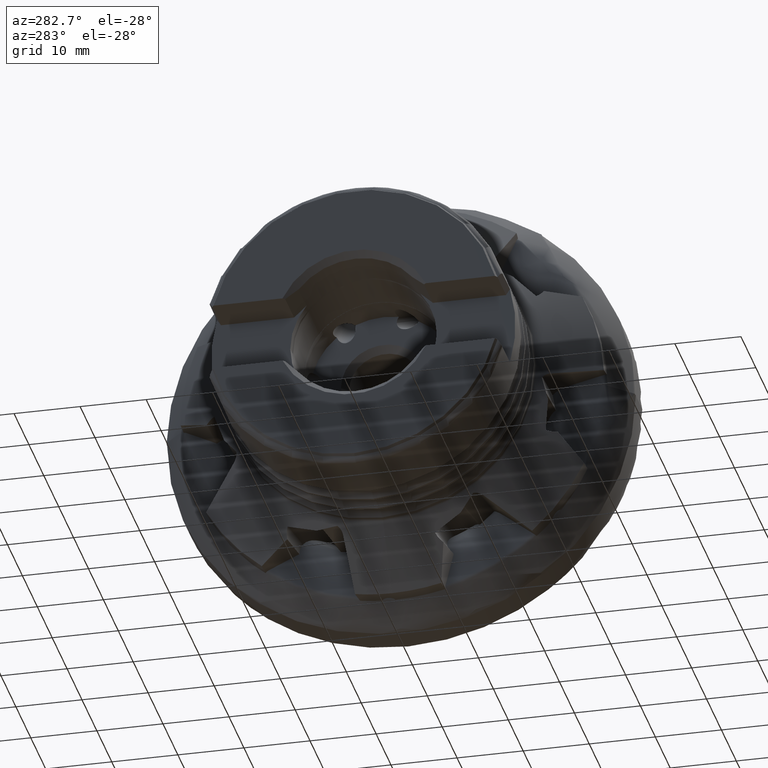
[diagram: clean part render]
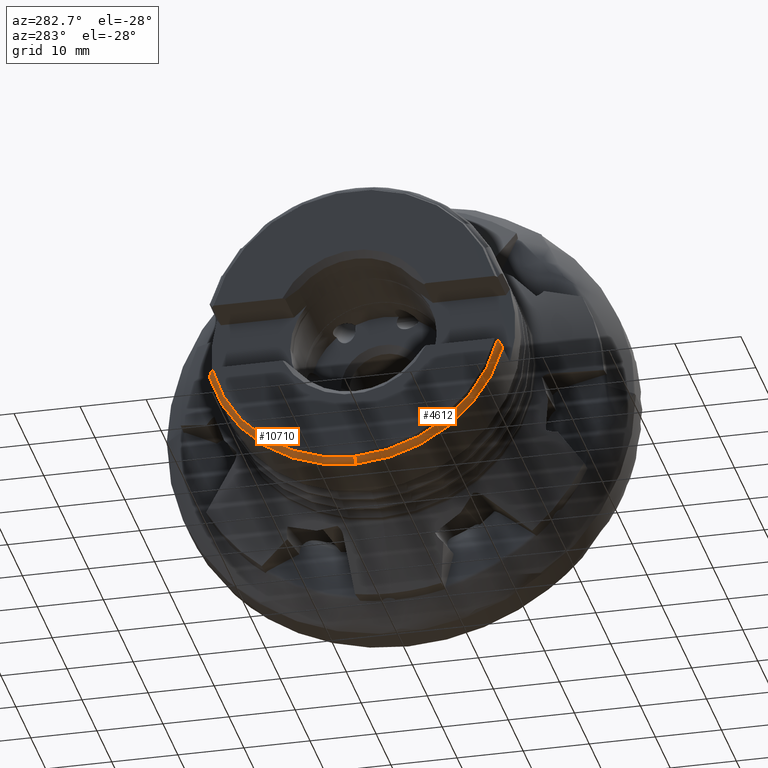
[diagram: same view with one multi-face feature highlighted, each face labeled with its STEP entity id]
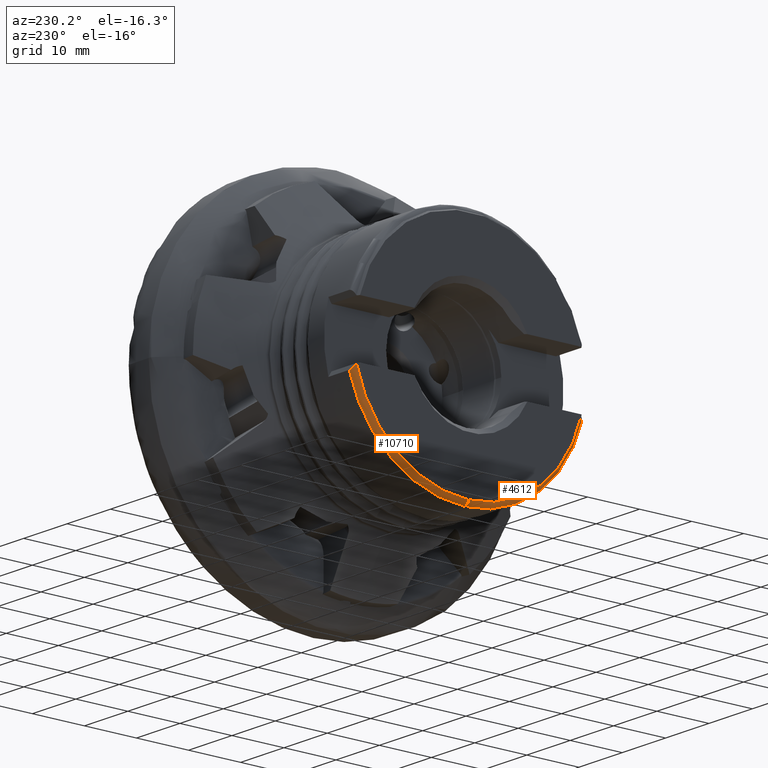
[diagram: same view with one multi-face feature highlighted, each face labeled with its STEP entity id]
A machine part, auxiliary view. The highlighted faces form ONE feature: a constant-radius fillet chain: 2 tangent blend faces with common blend radius 1 mm. The faces share edges in the B-rep.
A second angle (auxiliary view) of the same feature is appended — it is thin or edge-on in the first view.
Their STEP definitions:
[1] entity #10710 (Torus):
#3 = CARTESIAN_POINT ( 'NONE',  ( -37.78477570909506500, 22.16277957983924600, -6.149081337522224200 ) ) ;
#42 = AXIS2_PLACEMENT_3D ( 'NONE', #1176, #8169, #2180 ) ;
#533 = ORIENTED_EDGE ( 'NONE', *, *, #9667, .F. ) ;
#1176 = CARTESIAN_POINT ( 'NONE',  ( -38.62876197310684000, 0.0000000000000000000, 0.0000000000000000000 ) ) ;
#1490 = ORIENTED_EDGE ( 'NONE', *, *, #6953, .T. ) ;
#1525 = CIRCLE ( 'NONE', #8928, 22.99999999999999600 ) ;
#1550 = CARTESIAN_POINT ( 'NONE',  ( -37.65000000000000600, 0.0000000000000000000, 0.0000000000000000000 ) ) ;
#1961 = VERTEX_POINT ( 'NONE', #10274 ) ;
#1982 = CARTESIAN_POINT ( 'NONE',  ( -38.60899593719592800, 21.65295164940627300, -5.331065338834224400 ) ) ;
#2059 = CARTESIAN_POINT ( 'NONE',  ( -37.65000000000000600, 22.16277957983918900, -6.149081337522125600 ) ) ;
#2180 = DIRECTION ( 'NONE',  ( 0.0000000000000000000, 0.0000000000000000000, -1.000000000000000000 ) ) ;
#2532 = DIRECTION ( 'NONE',  ( 0.0000000000000000000, 0.0000000000000000000, -1.000000000000000000 ) ) ;
#3967 = CARTESIAN_POINT ( 'NONE',  ( -38.47807463665398600, 21.85142011108864000, -5.649506850567987300 ) ) ;
#4162 = TOROIDAL_SURFACE ( 'NONE', #4817, 21.99999999999999600, 0.9999999999999991100 ) ;
#4604 = CARTESIAN_POINT ( 'NONE',  ( -37.65000000000000600, 0.0000000000000000000, -21.99999999999999600 ) ) ;
#4817 = AXIS2_PLACEMENT_3D ( 'NONE', #10870, #8879, #5882 ) ;
#4974 = CARTESIAN_POINT ( 'NONE',  ( -38.24959921778114600, 22.02455183252134300, -5.927295707471275300 ) ) ;
#5599 = DIRECTION ( 'NONE',  ( 0.0000000000000000000, 0.0000000000000000000, -1.000000000000000000 ) ) ;
#5882 = DIRECTION ( 'NONE',  ( 0.0000000000000000000, 0.0000000000000000000, -1.000000000000000000 ) ) ;
#5972 = CARTESIAN_POINT ( 'NONE',  ( -37.91644841335190800, 22.14275851567247200, -6.116957654566550500 ) ) ;
#6084 = VERTEX_POINT ( 'NONE', #2059 ) ;
#6499 = FACE_OUTER_BOUND ( 'NONE', #7173, .T. ) ;
#6819 = VERTEX_POINT ( 'NONE', #10515 ) ;
#6953 = EDGE_CURVE ( 'NONE', #10590, #6819, #7525, .T. ) ;
#6997 = CARTESIAN_POINT ( 'NONE',  ( -37.65000000000000600, 22.16277957983918900, -6.149081337522125600 ) ) ;
#7173 = EDGE_LOOP ( 'NONE', ( #533, #1490, #9065, #10235 ) ) ;
#7525 = CIRCLE ( 'NONE', #42, 22.20499999999999500 ) ;
#7980 = EDGE_CURVE ( 'NONE', #6819, #6084, #9057, .T. ) ;
#8169 = DIRECTION ( 'NONE',  ( 1.000000000000000000, -0.0000000000000000000, -0.0000000000000000000 ) ) ;
#8528 = DIRECTION ( 'NONE',  ( 1.000000000000000000, -0.0000000000000000000, -0.0000000000000000000 ) ) ;
#8879 = DIRECTION ( 'NONE',  ( 1.000000000000000000, -0.0000000000000000000, -0.0000000000000000000 ) ) ;
#8928 = AXIS2_PLACEMENT_3D ( 'NONE', #1550, #8528, #2532 ) ;
#8960 = CARTESIAN_POINT ( 'NONE',  ( -38.62876197310684000, 21.58299944909203900, -5.218827433484714000 ) ) ;
#9057 = B_SPLINE_CURVE_WITH_KNOTS ( 'NONE', 3,
 ( #8960, #1982, #9948, #3967, #10966, #4974, #11963, #5972, #3, #6997 ),
 .UNSPECIFIED., .F., .F.,
 ( 4, 2, 2, 2, 4 ),
 ( 0.0000000000000000000, 0.0003970312538260667200, 0.0007940625076521334400, 0.001191093761478200200, 0.001588125015304266900 ),
 .UNSPECIFIED. ) ;
#9065 = ORIENTED_EDGE ( 'NONE', *, *, #7980, .T. ) ;
#9667 = EDGE_CURVE ( 'NONE', #10590, #1961, #10754, .T. ) ;
#9837 = AXIS2_PLACEMENT_3D ( 'NONE', #4604, #11584, #5599 ) ;
#9913 = EDGE_CURVE ( 'NONE', #1961, #6084, #1525, .T. ) ;
#9948 = CARTESIAN_POINT ( 'NONE',  ( -38.57580167535191200, 21.72076875212226500, -5.439877492297911000 ) ) ;
#10235 = ORIENTED_EDGE ( 'NONE', *, *, #9913, .F. ) ;
#10274 = CARTESIAN_POINT ( 'NONE',  ( -37.65000000000000600, 0.0000000000000000000, -22.99999999999999300 ) ) ;
#10515 = CARTESIAN_POINT ( 'NONE',  ( -38.62876197310684000, 21.58299944909203900, -5.218827433484714000 ) ) ;
#10590 = VERTEX_POINT ( 'NONE', #11567 ) ;
#10710 = ADVANCED_FACE ( 'NONE', ( #6499 ), #4162, .T. ) ;
#10754 = CIRCLE ( 'NONE', #9837, 0.9999999999999974500 ) ;
#10870 = CARTESIAN_POINT ( 'NONE',  ( -37.65000000000000600, 0.0000000000000000000, 0.0000000000000000000 ) ) ;
#10966 = CARTESIAN_POINT ( 'NONE',  ( -38.41334595356296000, 21.91394617149252600, -5.749829556901220300 ) ) ;
#11567 = CARTESIAN_POINT ( 'NONE',  ( -38.62876197310684000, 0.0000000000000000000, -22.20499999999999500 ) ) ;
#11584 = DIRECTION ( 'NONE',  ( -0.0000000000000000000, -1.000000000000000000, -0.0000000000000000000 ) ) ;
#11963 = CARTESIAN_POINT ( 'NONE',  ( -38.14979191648345100, 22.07306216387124600, -6.005130256692966700 ) ) ;
[2] entity #4612 (Torus):
#1544 = FACE_OUTER_BOUND ( 'NONE', #4588, .T. ) ;
#1961 = VERTEX_POINT ( 'NONE', #10274 ) ;
#3567 = CARTESIAN_POINT ( 'NONE',  ( -38.62876197310684000, 0.0000000000000000000, 0.0000000000000000000 ) ) ;
#3580 = DIRECTION ( 'NONE',  ( 0.0000000000000000000, 0.0000000000000000000, -1.000000000000000000 ) ) ;
#3677 = CARTESIAN_POINT ( 'NONE',  ( -38.14805147086510600, -22.07368532447811700, -6.006130114322855800 ) ) ;
#4179 = CIRCLE ( 'NONE', #4889, 22.99999999999999600 ) ;
#4575 = DIRECTION ( 'NONE',  ( 0.0000000000000000000, 0.0000000000000000000, -1.000000000000000000 ) ) ;
#4585 = CARTESIAN_POINT ( 'NONE',  ( -37.65000000000000600, 0.0000000000000000000, 0.0000000000000000000 ) ) ;
#4588 = EDGE_LOOP ( 'NONE', ( #9598, #7319, #8546, #6321 ) ) ;
#4604 = CARTESIAN_POINT ( 'NONE',  ( -37.65000000000000600, 0.0000000000000000000, -21.99999999999999600 ) ) ;
#4612 = ADVANCED_FACE ( 'NONE', ( #1544 ), #9187, .T. ) ;
#4689 = CARTESIAN_POINT ( 'NONE',  ( -38.41265849732323500, -21.91453231878247700, -5.750770026875791500 ) ) ;
#4872 = DIRECTION ( 'NONE',  ( 1.000000000000000000, -0.0000000000000000000, -0.0000000000000000000 ) ) ;
#4889 = AXIS2_PLACEMENT_3D ( 'NONE', #10848, #4872, #11851 ) ;
#5543 = B_SPLINE_CURVE_WITH_KNOTS ( 'NONE', 3,
 ( #9615, #8664, #9664, #3677, #10661, #4689, #11671, #5683, #12687, #6707 ),
 .UNSPECIFIED., .F., .F.,
 ( 4, 2, 2, 2, 4 ),
 ( 0.0000000000000000000, 0.0003978126942299011500, 0.0007956253884598023000, 0.001193438082689703400, 0.001591250776919604600 ),
 .UNSPECIFIED. ) ;
#5581 = DIRECTION ( 'NONE',  ( 1.000000000000000000, -0.0000000000000000000, -0.0000000000000000000 ) ) ;
#5599 = DIRECTION ( 'NONE',  ( 0.0000000000000000000, 0.0000000000000000000, -1.000000000000000000 ) ) ;
#5683 = CARTESIAN_POINT ( 'NONE',  ( -38.57513850725457900, -21.72183810996415300, -5.441593270839590900 ) ) ;
#6321 = ORIENTED_EDGE ( 'NONE', *, *, #10013, .T. ) ;
#6602 = VERTEX_POINT ( 'NONE', #10227 ) ;
#6707 = CARTESIAN_POINT ( 'NONE',  ( -38.62876197310684000, -21.58299944909203900, -5.218827433484714000 ) ) ;
#7084 = AXIS2_PLACEMENT_3D ( 'NONE', #3567, #10549, #4575 ) ;
#7319 = ORIENTED_EDGE ( 'NONE', *, *, #9667, .T. ) ;
#8094 = CIRCLE ( 'NONE', #7084, 22.20499999999999500 ) ;
#8546 = ORIENTED_EDGE ( 'NONE', *, *, #9851, .F. ) ;
#8664 = CARTESIAN_POINT ( 'NONE',  ( -37.78485543270551300, -22.16277957983918200, -6.149081337522123800 ) ) ;
#9187 = TOROIDAL_SURFACE ( 'NONE', #11898, 21.99999999999999600, 0.9999999999999991100 ) ;
#9598 = ORIENTED_EDGE ( 'NONE', *, *, #10519, .T. ) ;
#9615 = CARTESIAN_POINT ( 'NONE',  ( -37.65000000000000600, -22.16277957983919200, -6.149081337522130900 ) ) ;
#9657 = VERTEX_POINT ( 'NONE', #12553 ) ;
#9664 = CARTESIAN_POINT ( 'NONE',  ( -37.91623810789465700, -22.14271714310337900, -6.116891272516035400 ) ) ;
#9667 = EDGE_CURVE ( 'NONE', #10590, #1961, #10754, .T. ) ;
#9837 = AXIS2_PLACEMENT_3D ( 'NONE', #4604, #11584, #5599 ) ;
#9851 = EDGE_CURVE ( 'NONE', #6602, #1961, #4179, .T. ) ;
#10013 = EDGE_CURVE ( 'NONE', #6602, #9657, #5543, .T. ) ;
#10227 = CARTESIAN_POINT ( 'NONE',  ( -37.65000000000000600, -22.16277957983919200, -6.149081337522130900 ) ) ;
#10274 = CARTESIAN_POINT ( 'NONE',  ( -37.65000000000000600, 0.0000000000000000000, -22.99999999999999300 ) ) ;
#10519 = EDGE_CURVE ( 'NONE', #9657, #10590, #8094, .T. ) ;
#10549 = DIRECTION ( 'NONE',  ( 1.000000000000000000, -0.0000000000000000000, -0.0000000000000000000 ) ) ;
#10590 = VERTEX_POINT ( 'NONE', #11567 ) ;
#10661 = CARTESIAN_POINT ( 'NONE',  ( -38.24869185080445500, -22.02504174607131300, -5.928081770960403700 ) ) ;
#10754 = CIRCLE ( 'NONE', #9837, 0.9999999999999974500 ) ;
#10848 = CARTESIAN_POINT ( 'NONE',  ( -37.65000000000000600, 0.0000000000000000000, 0.0000000000000000000 ) ) ;
#11567 = CARTESIAN_POINT ( 'NONE',  ( -38.62876197310684000, 0.0000000000000000000, -22.20499999999999500 ) ) ;
#11584 = DIRECTION ( 'NONE',  ( -0.0000000000000000000, -1.000000000000000000, -0.0000000000000000000 ) ) ;
#11671 = CARTESIAN_POINT ( 'NONE',  ( -38.47760884465724000, -21.85185793067608600, -5.650209329592167200 ) ) ;
#11851 = DIRECTION ( 'NONE',  ( 0.0000000000000000000, 0.0000000000000000000, -1.000000000000000000 ) ) ;
#11898 = AXIS2_PLACEMENT_3D ( 'NONE', #4585, #5581, #3580 ) ;
#12553 = CARTESIAN_POINT ( 'NONE',  ( -38.62876197310684000, -21.58299944909203900, -5.218827433484714000 ) ) ;
#12687 = CARTESIAN_POINT ( 'NONE',  ( -38.60898630309388600, -21.65298574459053400, -5.331120044362374500 ) ) ;